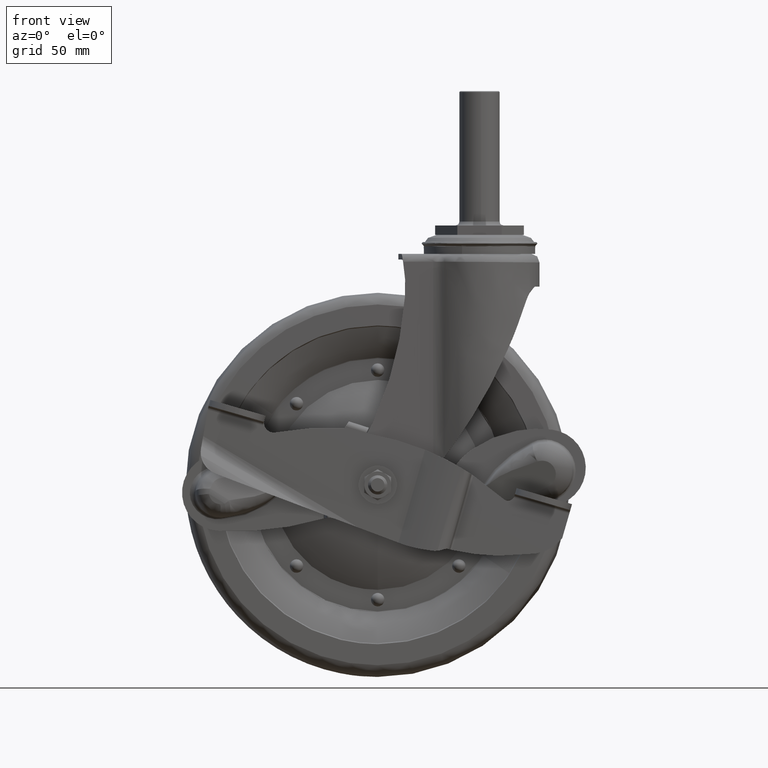
[diagram: clean part render]
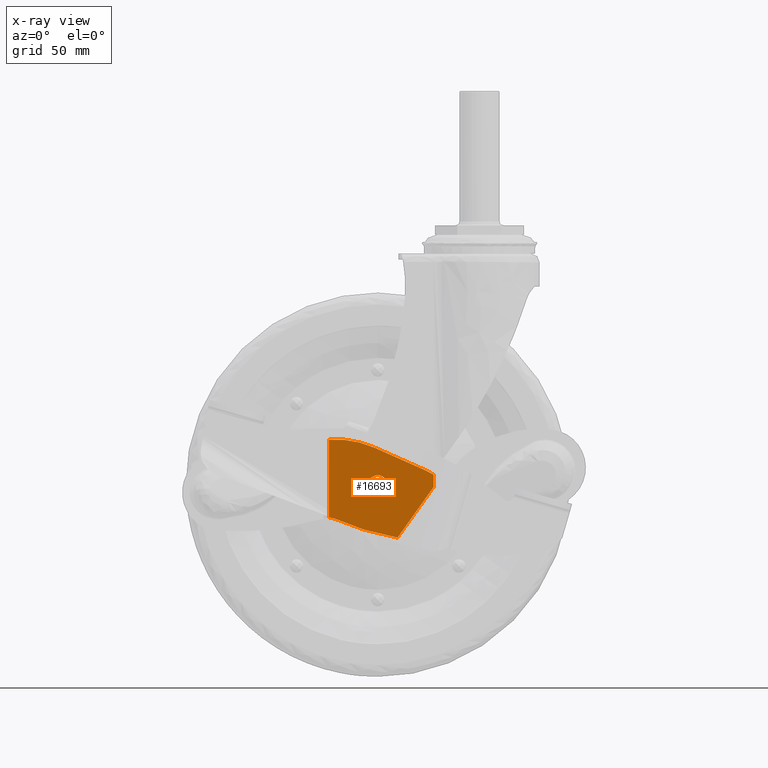
[diagram: x-ray — body ghosted, one internal face saturated and labeled with its STEP entity id]
A machine part, front view, then the same camera in x-ray: the body is ghosted and one INTERNAL B-rep face — a face not visible from any outside direction — is saturated and labeled: STEP entity #16693.
In plain terms, the highlighted face is a freeform B-spline surface patch.
Its self-contained STEP definition (entity closure, byte-faithful):
#7040=CARTESIAN_POINT('',(-53.0,-23.700220000000002,-125.388297044952400));
#7041=VERTEX_POINT('',#7040);
#7042=CARTESIAN_POINT('',(-48.005444158065529,-23.700220000000002,-130.005216974485510));
#7043=VERTEX_POINT('',#7042);
#7044=CARTESIAN_POINT('',(-53.0,-23.700220000000002,-125.388297044952400));
#7045=CARTESIAN_POINT('',(-48.368803637601893,-23.700220000000009,-125.388297044952410));
#7046=CARTESIAN_POINT('',(-48.005444158065529,-23.700220000000005,-130.005216974485590));
#7054=(BOUNDED_CURVE()B_SPLINE_CURVE(2,(#7044,#7045,#7046),.UNSPECIFIED.,.F.,.U.)B_SPLINE_CURVE_WITH_KNOTS((3,3),(0.0,0.236331300602895),.UNSPECIFIED.)CURVE()GEOMETRIC_REPRESENTATION_ITEM()RATIONAL_B_SPLINE_CURVE((1.0,0.723120658640194,0.969723356109475))REPRESENTATION_ITEM(''));
#7055=EDGE_CURVE('',#7041,#7043,#7054,.T.);
#7096=CARTESIAN_POINT('',(-57.994555841934471,-23.700220000000002,-130.791377115419290));
#7097=VERTEX_POINT('',#7096);
#7103=CARTESIAN_POINT('',(-57.994555841934464,-23.700220000000002,-130.791377115419240));
#7104=CARTESIAN_POINT('',(-58.009999999999991,-23.700220000000002,-130.595140481497990));
#7105=CARTESIAN_POINT('',(-58.009999999999998,-23.700220000000002,-130.398297044952390));
#7106=CARTESIAN_POINT('',(-58.009999999999991,-23.700220000000005,-125.388297044952420));
#7107=CARTESIAN_POINT('',(-53.0,-23.700220000000002,-125.388297044952400));
#7115=(BOUNDED_CURVE()B_SPLINE_CURVE(2,(#7103,#7104,#7105,#7106,#7107),.UNSPECIFIED.,.F.,.U.)B_SPLINE_CURVE_WITH_KNOTS((3,2,3),(0.736331300602894,0.750000000000000,1.0),.UNSPECIFIED.)CURVE()GEOMETRIC_REPRESENTATION_ITEM()RATIONAL_B_SPLINE_CURVE((0.969723356109473,0.983986122546353,1.0,0.707106781186548,1.0))REPRESENTATION_ITEM(''));
#7116=EDGE_CURVE('',#7097,#7041,#7115,.T.);
#7139=CARTESIAN_POINT('',(-53.0,-23.700220000000002,-135.408297044952410));
#7140=VERTEX_POINT('',#7139);
#7141=CARTESIAN_POINT('',(-48.005444158065522,-23.700219999999995,-130.005216974485590));
#7142=CARTESIAN_POINT('',(-47.989999999999988,-23.700220000000005,-130.201453608406780));
#7143=CARTESIAN_POINT('',(-47.990000000000002,-23.700220000000002,-130.398297044952390));
#7144=CARTESIAN_POINT('',(-47.989999999999981,-23.700220000000005,-135.408297044952380));
#7145=CARTESIAN_POINT('',(-53.0,-23.700220000000002,-135.408297044952410));
#7153=(BOUNDED_CURVE()B_SPLINE_CURVE(2,(#7141,#7142,#7143,#7144,#7145),.UNSPECIFIED.,.F.,.U.)B_SPLINE_CURVE_WITH_KNOTS((3,2,3),(0.236331300602895,0.250000000000000,0.500000000000000),.UNSPECIFIED.)CURVE()GEOMETRIC_REPRESENTATION_ITEM()RATIONAL_B_SPLINE_CURVE((0.969723356109475,0.983986122546353,1.0,0.707106781186548,1.0))REPRESENTATION_ITEM(''));
#7154=EDGE_CURVE('',#7043,#7140,#7153,.T.);
#7156=CARTESIAN_POINT('',(-53.0,-23.700220000000002,-135.408297044952410));
#7157=CARTESIAN_POINT('',(-57.631196362398072,-23.700220000000002,-135.408297044952380));
#7158=CARTESIAN_POINT('',(-57.994555841934464,-23.700220000000002,-130.791377115419210));
#7166=(BOUNDED_CURVE()B_SPLINE_CURVE(2,(#7156,#7157,#7158),.UNSPECIFIED.,.F.,.U.)B_SPLINE_CURVE_WITH_KNOTS((3,3),(0.500000000000000,0.736331300602894),.UNSPECIFIED.)CURVE()GEOMETRIC_REPRESENTATION_ITEM()RATIONAL_B_SPLINE_CURVE((1.0,0.723120658640195,0.969723356109473))REPRESENTATION_ITEM(''));
#7167=EDGE_CURVE('',#7140,#7097,#7166,.T.);
#15872=CARTESIAN_POINT('',(-23.977976438955348,-23.700220000000002,-125.119060882592390));
#15873=VERTEX_POINT('',#15872);
#15885=CARTESIAN_POINT('',(-27.849762264616299,-23.700220000000002,-122.984398969755200));
#15886=VERTEX_POINT('',#15885);
#15887=CARTESIAN_POINT('',(-27.849762264616150,-23.700220000000002,-122.984398969755400));
#15888=CARTESIAN_POINT('',(-27.511829252538689,-23.700220000000002,-123.134763658615600));
#15889=CARTESIAN_POINT('',(-27.184155645737249,-23.700220000000009,-123.303638628705800));
#15890=CARTESIAN_POINT('',(-26.538882579388890,-23.700220000000002,-123.659564602857100));
#15891=CARTESIAN_POINT('',(-26.221396397082181,-23.700220000000002,-123.846819984610800));
#15892=CARTESIAN_POINT('',(-25.587904817917270,-23.700220000000002,-124.224002419073500));
#15893=CARTESIAN_POINT('',(-25.271892981990369,-23.700220000000002,-124.413949353774900));
#15894=CARTESIAN_POINT('',(-24.632454087205758,-23.700220000000002,-124.780298814756310));
#15895=CARTESIAN_POINT('',(-24.308892177422852,-23.700220000000002,-124.956424854618700));
#15896=CARTESIAN_POINT('',(-23.977976438955299,-23.700220000000002,-125.119060882592390));
#15897=B_SPLINE_CURVE_WITH_KNOTS('',3,(#15887,#15888,#15889,#15890,#15891,#15892,#15893,#15894,#15895,#15896),.UNSPECIFIED.,.F.,.U.,(4,2,2,2,4),(0.0,0.250000000000000,0.500000000000000,0.750000000000000,1.0),.UNSPECIFIED.);
#15898=EDGE_CURVE('',#15886,#15873,#15897,.T.);
#16248=CARTESIAN_POINT('',(-23.977976438955348,-23.700220000000002,-131.645861099049200));
#16249=VERTEX_POINT('',#16248);
#16309=CARTESIAN_POINT('',(-42.668467953466198,-23.700220000000002,-157.896290118338900));
#16310=VERTEX_POINT('',#16309);
#16326=CARTESIAN_POINT('',(-23.977976438955348,-23.700220000000002,-131.645861099049200));
#16327=CARTESIAN_POINT('',(-42.668467953466198,-23.700220000000002,-157.896290118338900));
#16328=QUASI_UNIFORM_CURVE('',1,(#16326,#16327),.UNSPECIFIED.,.F.,.U.);
#16329=EDGE_CURVE('',#16249,#16310,#16328,.T.);
#16354=CARTESIAN_POINT('',(-78.343225888538697,-23.700220000000002,-106.919509258229400));
#16355=VERTEX_POINT('',#16354);
#16381=CARTESIAN_POINT('',(-78.343225888538697,-23.700220000000002,-147.557815499927390));
#16382=VERTEX_POINT('',#16381);
#16383=CARTESIAN_POINT('',(-78.343225888538697,-23.700220000000002,-147.557815499927390));
#16384=CARTESIAN_POINT('',(-78.343225888538697,-23.700220000000002,-106.919509258229400));
#16385=QUASI_UNIFORM_CURVE('',1,(#16383,#16384),.UNSPECIFIED.,.F.,.U.);
#16386=EDGE_CURVE('',#16382,#16355,#16385,.T.);
#16604=CARTESIAN_POINT('',(-23.977976438955348,-23.700220000000002,-131.645861099049200));
#16605=CARTESIAN_POINT('',(-23.977976438955348,-23.700220000000002,-125.119060882592390));
#16606=QUASI_UNIFORM_CURVE('',1,(#16604,#16605),.UNSPECIFIED.,.F.,.U.);
#16607=EDGE_CURVE('',#16249,#15873,#16606,.T.);
#16614=CARTESIAN_POINT('',(-81.058769993174991,-23.700220000000002,-160.448652066920800));
#16615=CARTESIAN_POINT('',(-81.058769993174991,-23.700220000000002,-104.245587507474500));
#16616=CARTESIAN_POINT('',(-21.262430876129439,-23.700220000000002,-160.448652066920800));
#16617=CARTESIAN_POINT('',(-21.262430876129439,-23.700220000000002,-104.245587507474500));
#16618=B_SPLINE_SURFACE_WITH_KNOTS('',1,1,((#16614,#16616),(#16615,#16617)),.UNSPECIFIED.,.F.,.F.,.U.,(2,2),(2,2),(0.0,56.203064559446261),(0.0,59.796339117045541),.UNSPECIFIED.);
#16619=CARTESIAN_POINT('',(-54.524309894016604,-23.700220000000002,-111.115448877774400));
#16620=VERTEX_POINT('',#16619);
#16621=CARTESIAN_POINT('',(-27.849762264616299,-23.700220000000002,-122.984398969755200));
#16622=CARTESIAN_POINT('',(-54.524309894016604,-23.700220000000002,-111.115448877774400));
#16623=QUASI_UNIFORM_CURVE('',1,(#16621,#16622),.UNSPECIFIED.,.F.,.U.);
#16624=EDGE_CURVE('',#15886,#16620,#16623,.T.);
#16625=ORIENTED_EDGE('',*,*,#16624,.F.);
#16626=ORIENTED_EDGE('',*,*,#15898,.T.);
#16627=ORIENTED_EDGE('',*,*,#16607,.F.);
#16628=ORIENTED_EDGE('',*,*,#16329,.T.);
#16629=CARTESIAN_POINT('',(-59.509017562495202,-23.700220000000002,-153.915506679807410));
#16630=VERTEX_POINT('',#16629);
#16631=CARTESIAN_POINT('',(-59.509017562495202,-23.700220000000002,-153.915506679807410));
#16632=CARTESIAN_POINT('',(-42.668467953466198,-23.700220000000002,-157.896290118338900));
#16633=QUASI_UNIFORM_CURVE('',1,(#16631,#16632),.UNSPECIFIED.,.F.,.U.);
#16634=EDGE_CURVE('',#16630,#16310,#16633,.T.);
#16635=ORIENTED_EDGE('',*,*,#16634,.F.);
#16636=CARTESIAN_POINT('',(-60.735965390739203,-23.700220000000002,-153.540926500394390));
#16637=VERTEX_POINT('',#16636);
#16638=CARTESIAN_POINT('',(-60.735965390739132,-23.700220000000002,-153.540926500394190));
#16639=CARTESIAN_POINT('',(-60.134529546843979,-23.700220000000002,-153.767647624984220));
#16640=CARTESIAN_POINT('',(-59.509017562495252,-23.700220000000002,-153.915506679807610));
#16648=(BOUNDED_CURVE()B_SPLINE_CURVE(2,(#16638,#16639,#16640),.UNSPECIFIED.,.F.,.U.)CURVE()GEOMETRIC_REPRESENTATION_ITEM()QUASI_UNIFORM_CURVE()RATIONAL_B_SPLINE_CURVE((1.0,0.997940740620352,1.0))REPRESENTATION_ITEM(''));
#16649=EDGE_CURVE('',#16637,#16630,#16648,.T.);
#16650=ORIENTED_EDGE('',*,*,#16649,.F.);
#16651=CARTESIAN_POINT('',(-74.897464941259997,-23.700220000000002,-148.202516532707900));
#16652=VERTEX_POINT('',#16651);
#16653=CARTESIAN_POINT('',(-74.897464941259997,-23.700220000000002,-148.202516532707900));
#16654=CARTESIAN_POINT('',(-60.735965390739203,-23.700220000000002,-153.540926500394390));
#16655=QUASI_UNIFORM_CURVE('',1,(#16653,#16654),.UNSPECIFIED.,.F.,.U.);
#16656=EDGE_CURVE('',#16652,#16637,#16655,.T.);
#16657=ORIENTED_EDGE('',*,*,#16656,.F.);
#16658=CARTESIAN_POINT('',(-74.897464941259841,-23.700220000000002,-148.202516532707510));
#16659=CARTESIAN_POINT('',(-76.562955911226979,-23.700219999999998,-147.573433902542230));
#16660=CARTESIAN_POINT('',(-78.343225888538683,-23.700220000000002,-147.557815499926990));
#16668=(BOUNDED_CURVE()B_SPLINE_CURVE(2,(#16658,#16659,#16660),.UNSPECIFIED.,.F.,.U.)CURVE()GEOMETRIC_REPRESENTATION_ITEM()QUASI_UNIFORM_CURVE()RATIONAL_B_SPLINE_CURVE((1.0,0.984518925861983,1.0))REPRESENTATION_ITEM(''));
#16669=EDGE_CURVE('',#16652,#16382,#16668,.T.);
#16670=ORIENTED_EDGE('',*,*,#16669,.T.);
#16671=ORIENTED_EDGE('',*,*,#16386,.T.);
#16672=CARTESIAN_POINT('',(-54.524309894016604,-23.700220000000002,-111.115448877774400));
#16673=CARTESIAN_POINT('',(-65.910834976895018,-23.700220000000002,-106.048967533557840));
#16674=CARTESIAN_POINT('',(-78.343225888538669,-23.700220000000002,-106.919509258229600));
#16682=(BOUNDED_CURVE()B_SPLINE_CURVE(2,(#16672,#16673,#16674),.UNSPECIFIED.,.F.,.U.)CURVE()GEOMETRIC_REPRESENTATION_ITEM()QUASI_UNIFORM_CURVE()RATIONAL_B_SPLINE_CURVE((1.0,0.970311977229748,1.0))REPRESENTATION_ITEM(''));
#16683=EDGE_CURVE('',#16620,#16355,#16682,.T.);
#16684=ORIENTED_EDGE('',*,*,#16683,.F.);
#16685=EDGE_LOOP('',(#16625,#16626,#16627,#16628,#16635,#16650,#16657,#16670,#16671,#16684));
#16686=FACE_OUTER_BOUND('',#16685,.T.);
#16687=ORIENTED_EDGE('',*,*,#7167,.F.);
#16688=ORIENTED_EDGE('',*,*,#7154,.F.);
#16689=ORIENTED_EDGE('',*,*,#7055,.F.);
#16690=ORIENTED_EDGE('',*,*,#7116,.F.);
#16691=EDGE_LOOP('',(#16687,#16688,#16689,#16690));
#16692=FACE_BOUND('',#16691,.T.);
#16693=ADVANCED_FACE('',(#16686,#16692),#16618,.T.);